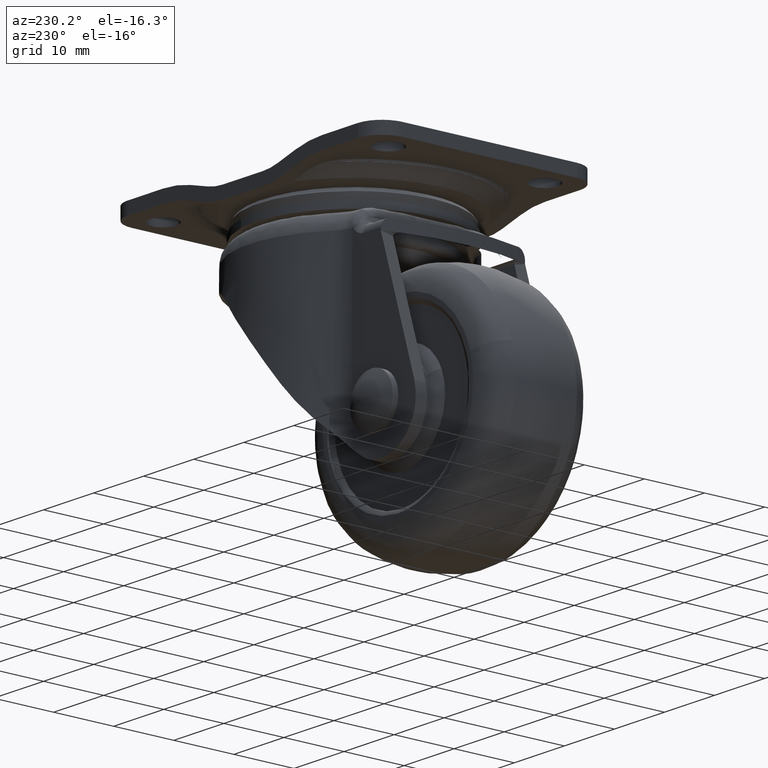
[diagram: clean part render]
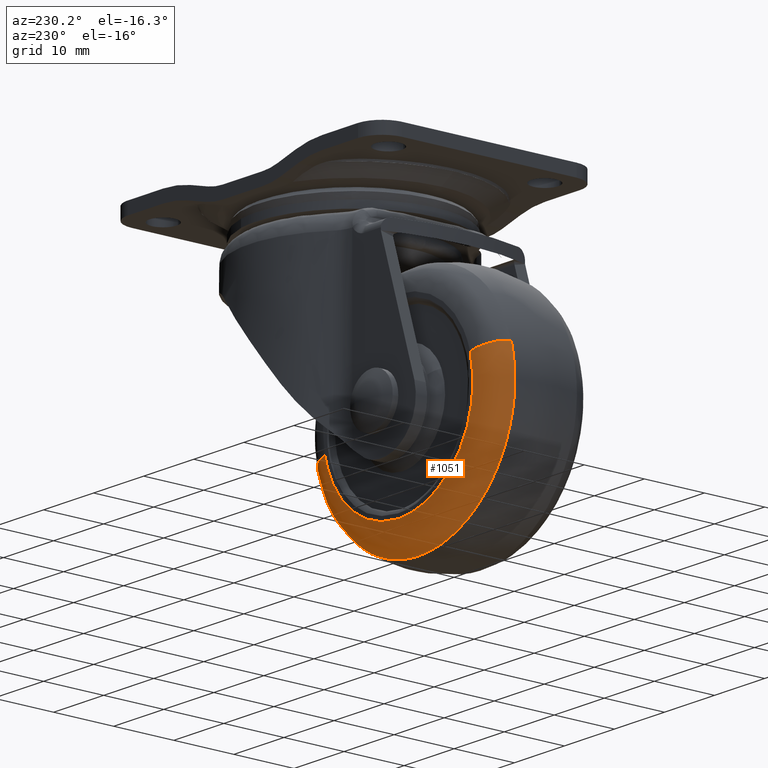
[diagram: same view with one face highlighted and labeled with its STEP entity id]
A machine part, auxiliary view. The second image highlights one B-rep face of the part: STEP entity #1051.
In plain terms, the highlighted face is a freeform B-spline surface patch.
Its self-contained STEP definition (entity closure, byte-faithful):
#861=CARTESIAN_POINT('',(-4.383465776645101,8.500000000000000,-38.257012191647853));
#862=VERTEX_POINT('',#861);
#880=CARTESIAN_POINT('',(-33.406344180658103,8.499999999999998,-30.912735497118732));
#881=VERTEX_POINT('',#880);
#895=CARTESIAN_POINT('',(-37.588836173045642,5.161291881262581,-29.726075042130571));
#896=VERTEX_POINT('',#895);
#897=CARTESIAN_POINT('',(-33.406344180658095,8.499999999999998,-30.912735497118735));
#898=CARTESIAN_POINT('',(-36.730886645503354,8.500000099229929,-29.969487415775294));
#899=CARTESIAN_POINT('',(-37.588836173045635,5.161291881262582,-29.726075042130571));
#907=(BOUNDED_CURVE()B_SPLINE_CURVE(2,(#897,#898,#899),.UNSPECIFIED.,.F.,.U.)B_SPLINE_CURVE_WITH_KNOTS((3,3),(-1.684629135549450,-0.312131482008033),.UNSPECIFIED.)CURVE()GEOMETRIC_REPRESENTATION_ITEM()RATIONAL_B_SPLINE_CURVE((0.895452171191072,0.710543988633766,0.896327080377596))REPRESENTATION_ITEM(''));
#908=EDGE_CURVE('',#881,#896,#907,.T.);
#925=CARTESIAN_POINT('',(-0.139951418023647,5.161289555410079,-39.202524540107952));
#926=VERTEX_POINT('',#925);
#942=CARTESIAN_POINT('',(-4.383465776645101,8.500000000000000,-38.257012191647853));
#943=CARTESIAN_POINT('',(-1.010416641151340,8.500000100841683,-39.008578760003843));
#944=CARTESIAN_POINT('',(-0.139951418023647,5.161289555410079,-39.202524540107945));
#952=(BOUNDED_CURVE()B_SPLINE_CURVE(2,(#942,#943,#944),.UNSPECIFIED.,.F.,.U.)B_SPLINE_CURVE_WITH_KNOTS((3,3),(-1.684629136074626,-0.312130878947474),.UNSPECIFIED.)CURVE()GEOMETRIC_REPRESENTATION_ITEM()RATIONAL_B_SPLINE_CURVE((0.875309691812189,0.694560791121055,0.876165080068623))REPRESENTATION_ITEM(''));
#953=EDGE_CURVE('',#862,#926,#952,.T.);
#958=CARTESIAN_POINT('',(-33.145730044232302,8.491838448348647,-30.986678414983668));
#959=CARTESIAN_POINT('',(-37.159236629248731,8.491838448348648,-45.132408459215966));
#960=CARTESIAN_POINT('',(-23.013506585016426,8.491838448348647,-49.145915044232403));
#961=CARTESIAN_POINT('',(-8.867776540784133,8.491838448348648,-53.159421629248818));
#962=CARTESIAN_POINT('',(-4.854269955767697,8.491838448348647,-39.013691585016538));
#963=CARTESIAN_POINT('',(-4.739405232465821,8.491838448348650,-38.608847259234231));
#964=CARTESIAN_POINT('',(-4.647882475635920,8.491838448348650,-38.198096218140485));
#965=CARTESIAN_POINT('',(-36.898439328372213,8.727096146707146,-29.921938498666023));
#966=CARTESIAN_POINT('',(-41.976685829706298,8.727096146707147,-47.820377827038236));
#967=CARTESIAN_POINT('',(-24.078246501334071,8.727096146707146,-52.898624328372321));
#968=CARTESIAN_POINT('',(-6.179807172961864,8.727096146707147,-57.976870829706399));
#969=CARTESIAN_POINT('',(-1.101560671627787,8.727096146707146,-40.078431501334173));
#970=CARTESIAN_POINT('',(-0.956223578769353,8.727096146707149,-39.566186351752457));
#971=CARTESIAN_POINT('',(-0.840420823792188,8.727096146707149,-39.046467499130941));
#972=CARTESIAN_POINT('',(-37.648448026425655,4.897729520576082,-29.709141786227395));
#973=CARTESIAN_POINT('',(-42.939491240198350,4.897729520576083,-48.357589812653046));
#974=CARTESIAN_POINT('',(-24.291043213772713,4.897729520576082,-53.648633026425749));
#975=CARTESIAN_POINT('',(-5.642595187347065,4.897729520576083,-58.939676240198466));
#976=CARTESIAN_POINT('',(-0.351551973574353,4.897729520576082,-40.291228213772811));
#977=CARTESIAN_POINT('',(-0.200124736106448,4.897729520576081,-39.757518158191566));
#978=CARTESIAN_POINT('',(-0.079469431032709,4.897729520576082,-39.216021224651520));
#986=(BOUNDED_SURFACE()B_SPLINE_SURFACE(2,2,((#958,#965,#972),(#959,#966,#973),(#960,#967,#974),(#961,#968,#975),(#962,#969,#976),(#963,#970,#977),(#964,#971,#978)),.UNSPECIFIED.,.F.,.F.,.U.)B_SPLINE_SURFACE_WITH_KNOTS((3,2,2,3),(3,3),(0.0,32.117330167936117,64.234660335872235,65.519352317410764),(0.0,6.724897645940319),.UNSPECIFIED.)GEOMETRIC_REPRESENTATION_ITEM()RATIONAL_B_SPLINE_SURFACE(((0.914849514882266,0.691102919241151,0.915811875675375),(0.646896295738474,0.488683560693236,0.647576787581229),(0.914849514882266,0.691102919241151,0.915811875675375),(0.646896295738474,0.488683560693236,0.647576787581229),(0.914849514882266,0.691102919241151,0.915811875675375),(0.904131396338118,0.683006152620920,0.905082482383965),(0.894270726459775,0.675557126712573,0.895211439737281)))REPRESENTATION_ITEM('')SURFACE());
#987=CARTESIAN_POINT('',(-19.0,8.500000000000000,-49.975163999999900));
#988=VERTEX_POINT('',#987);
#989=CARTESIAN_POINT('',(-19.0,8.500000000000000,-49.975163999999900));
#990=CARTESIAN_POINT('',(-6.994481142288406,8.500000000000000,-49.975163999999893));
#991=CARTESIAN_POINT('',(-4.383465776645101,8.500000000000000,-38.257012191647839));
#999=(BOUNDED_CURVE()B_SPLINE_CURVE(2,(#989,#990,#991),.UNSPECIFIED.,.F.,.U.)B_SPLINE_CURVE_WITH_KNOTS((3,3),(0.0,0.212784667811239),.UNSPECIFIED.)CURVE()GEOMETRIC_REPRESENTATION_ITEM()RATIONAL_B_SPLINE_CURVE((1.0,0.750707254922460,0.925779901437530))REPRESENTATION_ITEM(''));
#1000=EDGE_CURVE('',#988,#862,#999,.T.);
#1001=ORIENTED_EDGE('',*,*,#1000,.T.);
#1002=ORIENTED_EDGE('',*,*,#953,.T.);
#1003=CARTESIAN_POINT('',(-19.0,5.161290322580650,-54.322738718544549));
#1004=VERTEX_POINT('',#1003);
#1005=CARTESIAN_POINT('',(-19.0,5.161290322580650,-54.322738718544549));
#1006=CARTESIAN_POINT('',(-3.508992466893417,5.161290322580650,-54.322738718544542));
#1007=CARTESIAN_POINT('',(-0.139951418023647,5.161289555410079,-39.202524540107937));
#1015=(BOUNDED_CURVE()B_SPLINE_CURVE(2,(#1005,#1006,#1007),.UNSPECIFIED.,.F.,.U.)B_SPLINE_CURVE_WITH_KNOTS((3,3),(0.0,0.212784825809899),.UNSPECIFIED.)CURVE()GEOMETRIC_REPRESENTATION_ITEM()RATIONAL_B_SPLINE_CURVE((1.0,0.750707069815516,0.925780161430589))REPRESENTATION_ITEM(''));
#1016=EDGE_CURVE('',#1004,#926,#1015,.T.);
#1017=ORIENTED_EDGE('',*,*,#1016,.F.);
#1018=CARTESIAN_POINT('',(-37.588836173045635,5.161291881262581,-29.726075042130578));
#1019=CARTESIAN_POINT('',(-38.322553339057166,5.161291799325029,-32.312093893154909));
#1020=CARTESIAN_POINT('',(-38.322553366918292,5.161291690905633,-35.000185099765083));
#1021=CARTESIAN_POINT('',(-38.322553567189921,5.161290911564668,-54.322738761487550));
#1022=CARTESIAN_POINT('',(-19.0,5.161290322580650,-54.322738718544549));
#1030=(BOUNDED_CURVE()B_SPLINE_CURVE(2,(#1018,#1019,#1020,#1021,#1022),.UNSPECIFIED.,.F.,.U.)B_SPLINE_CURVE_WITH_KNOTS((3,2,3),(0.703494623372870,0.750000000000000,1.0),.UNSPECIFIED.)CURVE()GEOMETRIC_REPRESENTATION_ITEM()RATIONAL_B_SPLINE_CURVE((0.911301678785684,0.945515562190192,1.0,0.707106781186548,1.0))REPRESENTATION_ITEM(''));
#1031=EDGE_CURVE('',#896,#1004,#1030,.T.);
#1032=ORIENTED_EDGE('',*,*,#1031,.F.);
#1033=ORIENTED_EDGE('',*,*,#908,.F.);
#1034=CARTESIAN_POINT('',(-33.406344180658095,8.499999999999998,-30.912735497118735));
#1035=CARTESIAN_POINT('',(-33.974978999999792,8.500000000000000,-32.916906786414273));
#1036=CARTESIAN_POINT('',(-33.974978999999799,8.500000000000000,-35.000185000000101));
#1037=CARTESIAN_POINT('',(-33.974978999999792,8.500000000000002,-49.975163999999886));
#1038=CARTESIAN_POINT('',(-19.0,8.500000000000000,-49.975163999999900));
#1046=(BOUNDED_CURVE()B_SPLINE_CURVE(2,(#1034,#1035,#1036,#1037,#1038),.UNSPECIFIED.,.F.,.U.)B_SPLINE_CURVE_WITH_KNOTS((3,2,3),(0.703494464211854,0.750000000000000,1.0),.UNSPECIFIED.)CURVE()GEOMETRIC_REPRESENTATION_ITEM()RATIONAL_B_SPLINE_CURVE((0.911301444597239,0.945515375721462,1.0,0.707106781186548,1.0))REPRESENTATION_ITEM(''));
#1047=EDGE_CURVE('',#881,#988,#1046,.T.);
#1048=ORIENTED_EDGE('',*,*,#1047,.T.);
#1049=EDGE_LOOP('',(#1001,#1002,#1017,#1032,#1033,#1048));
#1050=FACE_OUTER_BOUND('',#1049,.T.);
#1051=ADVANCED_FACE('',(#1050),#986,.T.);